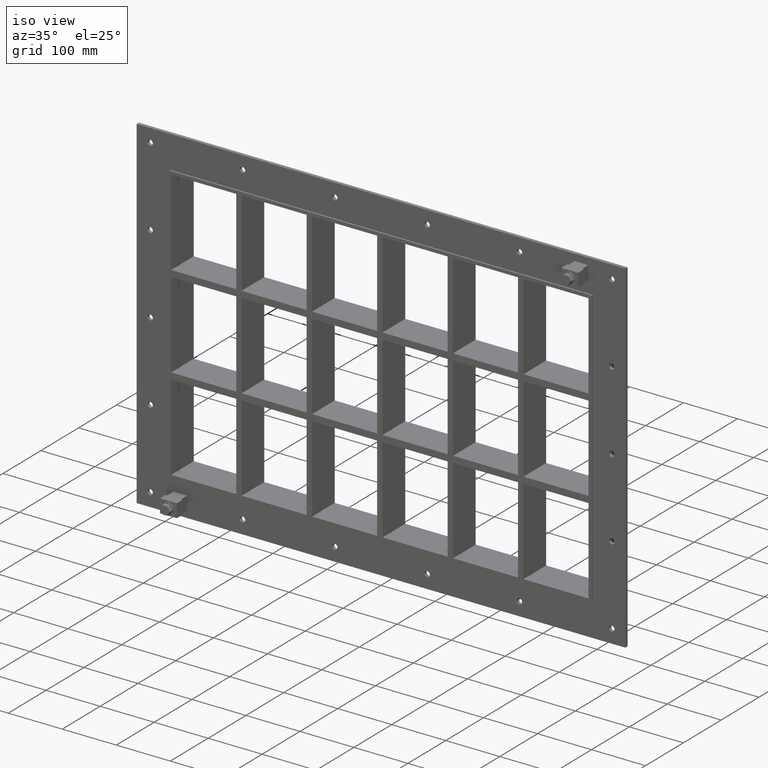
[diagram: clean part render]
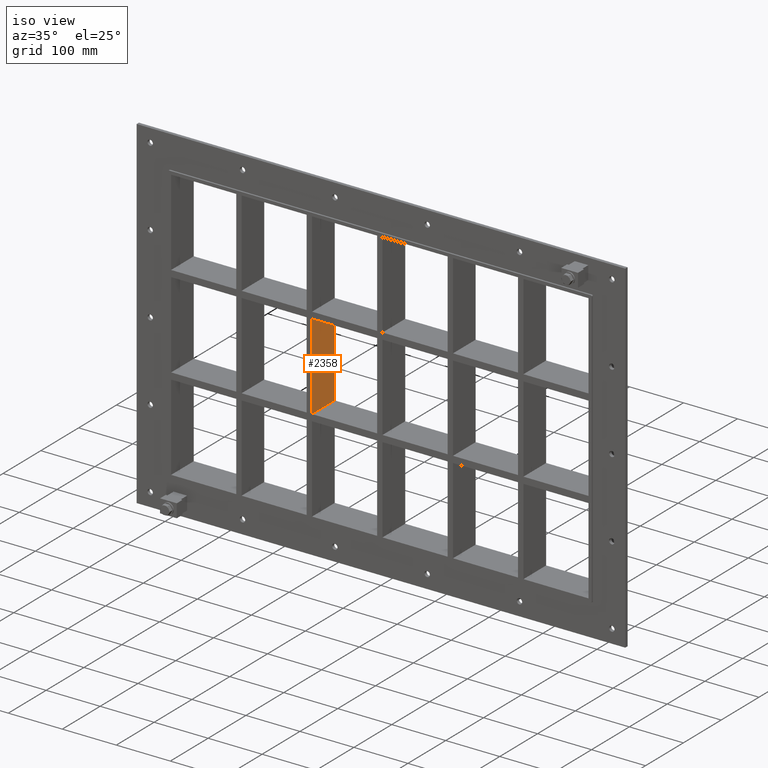
[diagram: same view with one face highlighted and labeled with its STEP entity id]
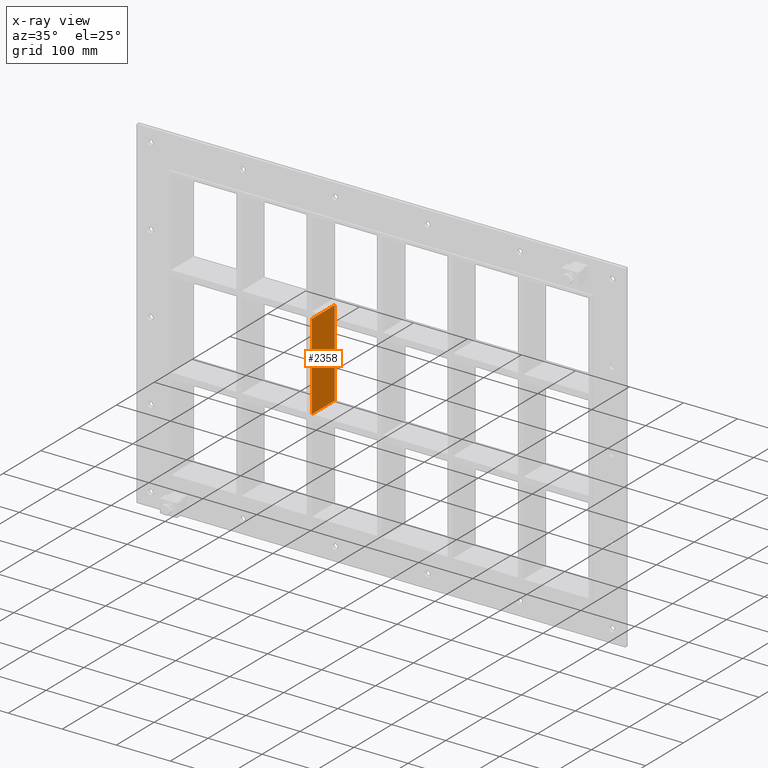
[diagram: x-ray of the same camera — body ghosted, the highlighted face saturated]
A machine part, iso view. The second image highlights one B-rep face of the part: STEP entity #2358.
The next image is the same camera in x-ray: the body ghosted, the highlighted face saturated — about 0% of this face is hidden behind the body in this view.
In plain terms, the highlighted planar face has unit normal (1, 0, 0).
Its self-contained STEP definition (entity closure, byte-faithful):
#667=CARTESIAN_POINT('',(-125.50000000000367,-3.0,79.749999999989114));
#668=VERTEX_POINT('',#667);
#675=CARTESIAN_POINT('',(-125.50000000000367,57.0,79.749999999989114));
#676=VERTEX_POINT('',#675);
#677=CARTESIAN_POINT('',(-125.50000000000365,57.0,79.749999999989114));
#678=DIRECTION('',(0.0,-1.0,0.0));
#679=VECTOR('',#678,60.0);
#680=LINE('',#677,#679);
#681=EDGE_CURVE('',#676,#668,#680,.T.);
#1685=CARTESIAN_POINT('',(-125.50000000000364,57.0,-79.750000000000227));
#1686=VERTEX_POINT('',#1685);
#1687=CARTESIAN_POINT('',(-125.50000000000364,57.0,79.749999999989114));
#1688=DIRECTION('',(0.0,0.0,-1.0));
#1689=VECTOR('',#1688,159.49999999998934);
#1690=LINE('',#1687,#1689);
#1691=EDGE_CURVE('',#676,#1686,#1690,.T.);
#2335=CARTESIAN_POINT('',(-125.50000000000364,-3.0,251.25));
#2336=DIRECTION('',(1.0,0.0,0.0));
#2337=DIRECTION('',(0.0,0.0,-1.0));
#2338=AXIS2_PLACEMENT_3D('',#2335,#2336,#2337);
#2339=PLANE('',#2338);
#2340=ORIENTED_EDGE('',*,*,#681,.T.);
#2341=CARTESIAN_POINT('',(-125.50000000000364,-3.0,-79.750000000000227));
#2342=VERTEX_POINT('',#2341);
#2343=CARTESIAN_POINT('',(-125.50000000000364,-3.0,79.749999999989114));
#2344=DIRECTION('',(0.0,0.0,-1.0));
#2345=VECTOR('',#2344,159.49999999998934);
#2346=LINE('',#2343,#2345);
#2347=EDGE_CURVE('',#668,#2342,#2346,.T.);
#2348=ORIENTED_EDGE('',*,*,#2347,.T.);
#2349=CARTESIAN_POINT('',(-125.50000000000361,57.0,-79.750000000000227));
#2350=DIRECTION('',(0.0,-1.0,0.0));
#2351=VECTOR('',#2350,60.0);
#2352=LINE('',#2349,#2351);
#2353=EDGE_CURVE('',#1686,#2342,#2352,.T.);
#2354=ORIENTED_EDGE('',*,*,#2353,.F.);
#2355=ORIENTED_EDGE('',*,*,#1691,.F.);
#2356=EDGE_LOOP('',(#2340,#2348,#2354,#2355));
#2357=FACE_OUTER_BOUND('',#2356,.T.);
#2358=ADVANCED_FACE('',(#2357),#2339,.T.);